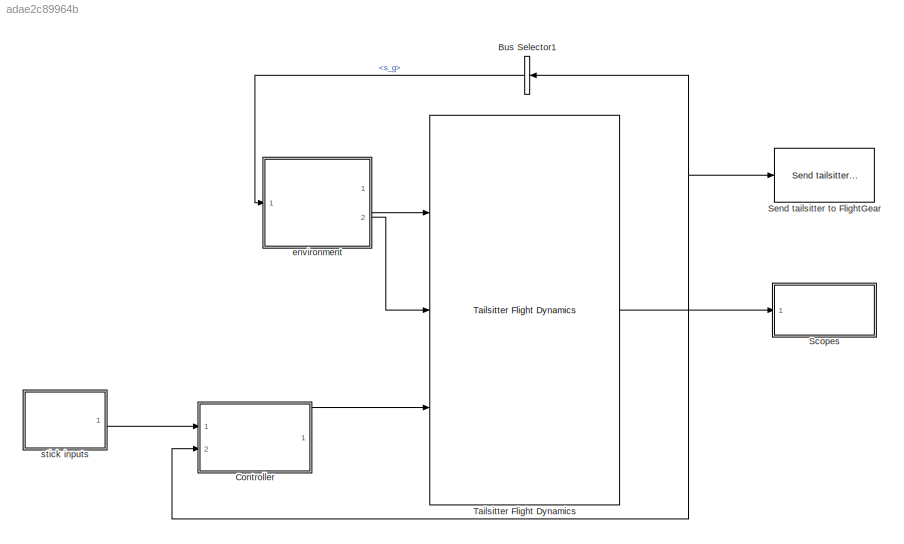
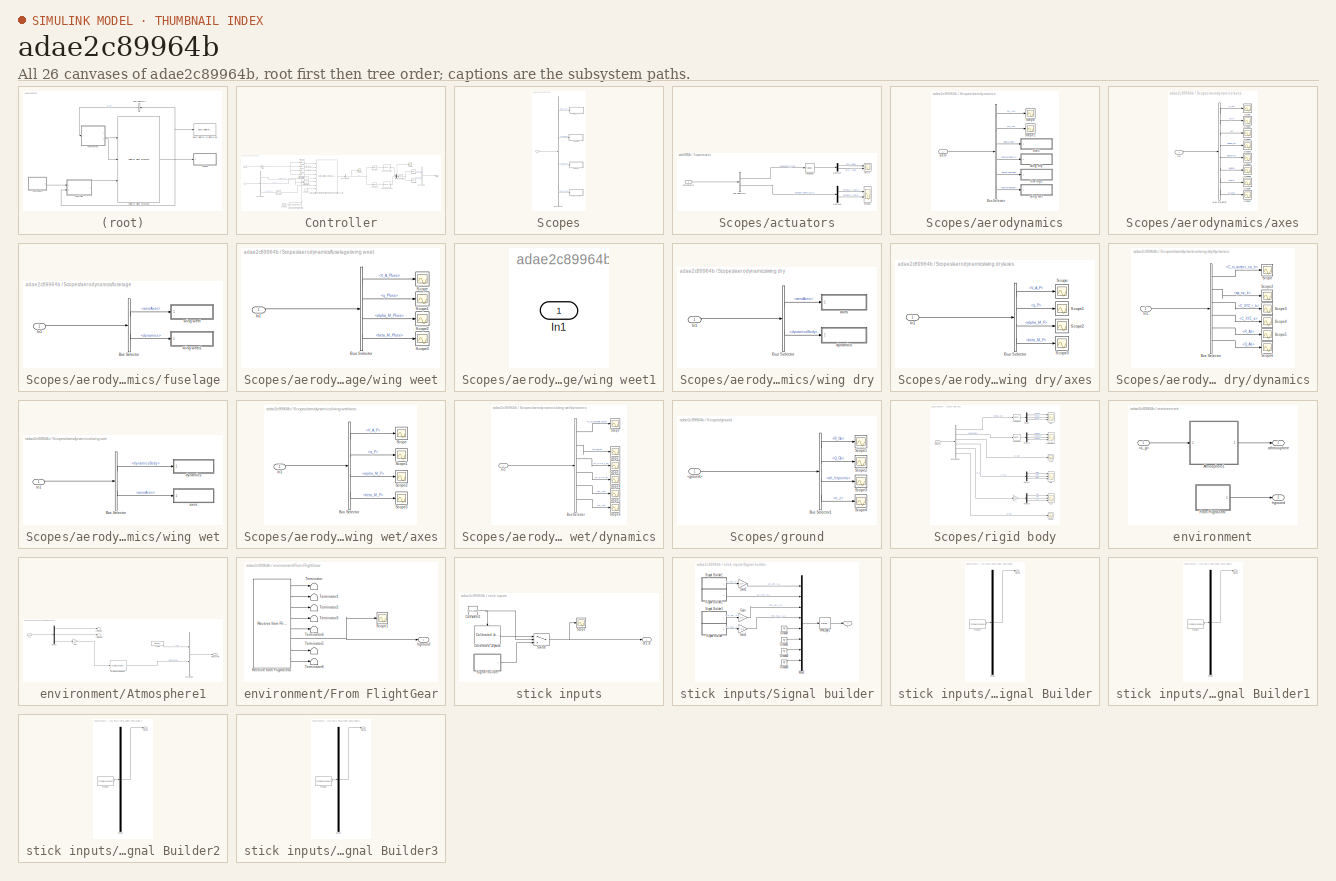
[diagram: thumbnail index - all 26 canvases of the model, root first then tree order]
MODEL slx_adae2c89964b
KIND model
CONFIG AbsTol = auto
CONFIG EnableMultiTasking = on
CONFIG FixedStep = 0.001
CONFIG MaxStep = auto
CONFIG MinStep = auto
CONFIG RelTol = 1e-4
CONFIG SampleTimeConstraint = Unconstrained
CONFIG Solver = ode45
CONFIG SolverName = ode45
CONFIG StartTime = 0
CONFIG StopTime = 1200
BLOCK [BusSelector] Bus Selector1
  OutputAsBus = off
  OutputSignals = rigid_body.s_g
  Ports = [1, 1]
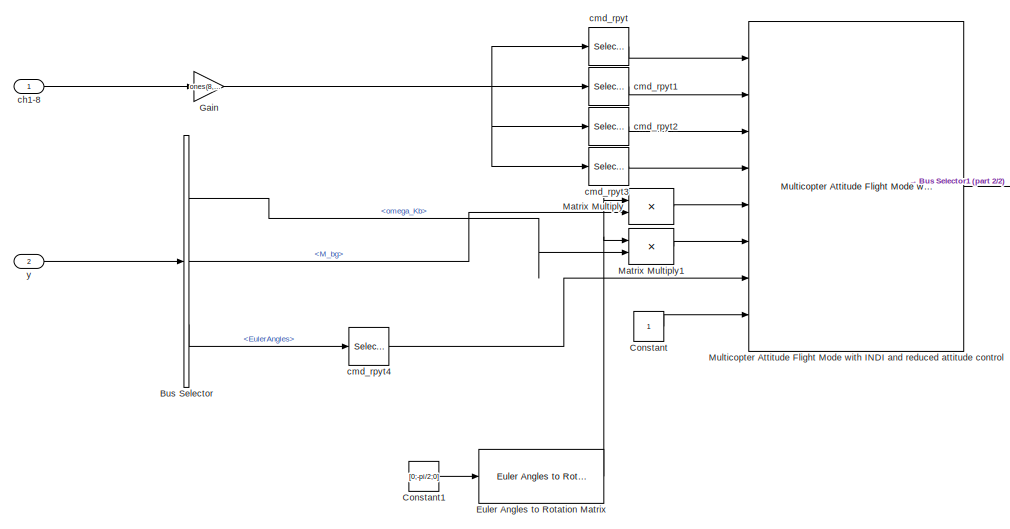
[diagram: Controller - part 1/2, left side, full height]
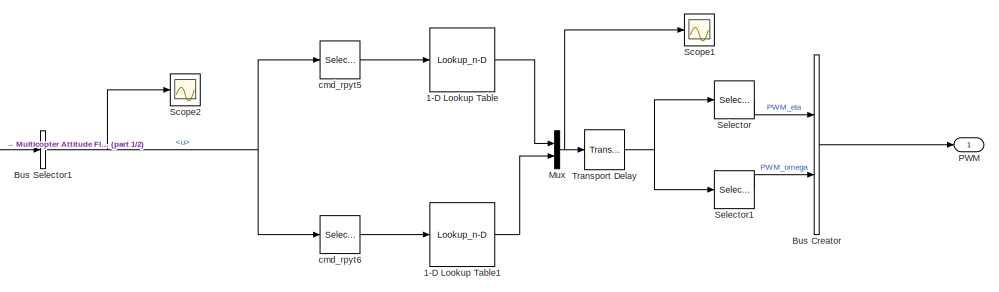
[diagram: Controller - part 2/2, middle right region]
BLOCK [SubSystem] Controller
  Ports = [2, 1]
  RequestExecContextInheritance = off
BLOCK [Lookup_n-D] Controller/1-D Lookup Table
  BreakpointsForDimension1 = [0,1]
  InternalRulePriority = Speed
  NumberOfTableDimensions = 1
  Ports = [1, 1]
  RndMeth = Simplest
  Table = [1100,1900]
BLOCK [Lookup_n-D] Controller/1-D Lookup Table1
  BreakpointsForDimension1 = [0,1]
  InternalRulePriority = Speed
  NumberOfTableDimensions = 1
  Ports = [1, 1]
  RndMeth = Simplest
  Table = [1000,2000]
BLOCK [BusCreator] Controller/Bus Creator
  DisplayOption = bar
  InheritFromInputs = on
  Inputs = 2
  Ports = [2, 1]
BLOCK [BusSelector] Controller/Bus Selector
  OutputAsBus = off
  OutputSignals = rigid_body.omega_Kb,rigid_body.M_bg,rigid_body.EulerAngles
  Ports = [1, 3]
BLOCK [BusSelector] Controller/Bus Selector1
  OutputAsBus = off
  OutputSignals = u
  Ports = [1, 1]
BLOCK [Constant] Controller/Constant
  OutDataTypeStr = Inherit: Inherit via back propagation
BLOCK [Constant] Controller/Constant1
  OutDataTypeStr = Inherit: Inherit via back propagation
  Value = [0;-pi/2;0]
BLOCK [Reference] Controller/Euler Angles to Rotation Matrix  REF=axes_transformation_lib/Euler Angles to Rotation Matrix  (lib defined in slx_69e2413c78c0)
  Ports = [1, 1]
  SourceBlock = axes_transformation_lib/Euler Angles to Rotation Matrix
  SourceProductName = LADAC
  SourceType = SubSystem
BLOCK [Gain] Controller/Gain
  Gain = ones(8,1)
  OutDataTypeStr = Inherit: Inherit via internal rule
  ParamDataTypeStr = Inherit: Inherit via internal rule
  SaturateOnIntegerOverflow = off
BLOCK [Product] Controller/Matrix Multiply
  InputSameDT = off
  Multiplication = Matrix(*)
  OutDataTypeStr = Inherit: Inherit via internal rule
  Ports = [2, 1]
  RndMeth = Floor
  SaturateOnIntegerOverflow = off
BLOCK [Product] Controller/Matrix Multiply1
  InputSameDT = off
  Multiplication = Matrix(*)
  OutDataTypeStr = Inherit: Inherit via internal rule
  Ports = [2, 1]
  RndMeth = Floor
  SaturateOnIntegerOverflow = off
BLOCK [Reference] Controller/Multicopter Attitude Flight Mode with INDI and reduced attitude control  REF=fmCopterAttiRedIndi_lib/Multicopter Attitude Flight Mode
with INDI and reduced attitude control
  Ports = [8, 1]
  SourceBlock = fmCopterAttiRedIndi_lib/Multicopter Attitude Flight Mode\nwith INDI and reduced attitude control
  SourceProductName = LADAC
BLOCK [Mux] Controller/Mux
  DisplayOption = bar
  Inputs = 2
  Ports = [2, 1]
BLOCK [Outport] Controller/PWM
  IconDisplay = Port number
BLOCK [Scope] Controller/Scope1
  Floating = off
  NumInputPorts = 1
  Ports = [1]
  ScopeSpecificationString = Simulink.scopes.TimeScopeBlockCfg('CurrentConfiguration', extmgr.ConfigurationSet(extmgr.Configuration('Core','General UI',true),extmgr.Configuration('Core','Source UI',true),extmgr.Configuration('Sources','WiredSimulink',true,'DataLoggingVariableName','ScopeData2'),extmgr.Configuration('Visuals','Time Domain',true,'SerializedDisplays',{struct('MinYLimReal','987.5','MaxYLimReal','2112.5','YLabelRe...<+1589ch>
BLOCK [Scope] Controller/Scope2
  Floating = off
  NumInputPorts = 1
  Ports = [1]
  ScopeSpecificationString = Simulink.scopes.TimeScopeBlockCfg('CurrentConfiguration', extmgr.ConfigurationSet(extmgr.Configuration('Core','General UI',true),extmgr.Configuration('Core','Source UI',true),extmgr.Configuration('Sources','WiredSimulink',true,'DataLoggingVariableName','ScopeData3'),extmgr.Configuration('Visuals','Time Domain',true,'SerializedDisplays',{struct('MinYLimReal','-0.125','MaxYLimReal','1.125','YLabelRe...<+1543ch>
BLOCK [Selector] Controller/Selector
  IndexOptions = Index vector (dialog)
  Indices = [1:2]
  InputPortWidth = 4
  OutputSizes = 1
  Ports = [1, 1]
BLOCK [Selector] Controller/Selector1
  IndexOptions = Index vector (dialog)
  Indices = [3:4]
  InputPortWidth = 4
  OutputSizes = 1
  Ports = [1, 1]
BLOCK [TransportDelay] Controller/Transport Delay
  DelayTime = 0.01*0
  Ports = [1, 1]
BLOCK [Inport] Controller/ch1-8
  IconDisplay = Port number
  OutDataTypeStr = double
  SamplingMode = Sample based
  SignalType = real
BLOCK [Selector] Controller/cmd_rpyt
  IndexOptions = Index vector (dialog)
  Indices = 1
  InputPortWidth = 8
  OutputSizes = 1
  Ports = [1, 1]
BLOCK [Selector] Controller/cmd_rpyt1
  IndexOptions = Index vector (dialog)
  Indices = 2
  InputPortWidth = 8
  OutputSizes = 1
  Ports = [1, 1]
BLOCK [Selector] Controller/cmd_rpyt2
  IndexOptions = Index vector (dialog)
  Indices = 3
  InputPortWidth = 8
  OutputSizes = 1
  Ports = [1, 1]
BLOCK [Selector] Controller/cmd_rpyt3
  IndexOptions = Index vector (dialog)
  Indices = 4
  InputPortWidth = 8
  OutputSizes = 1
  Ports = [1, 1]
BLOCK [Selector] Controller/cmd_rpyt4
  IndexOptions = Index vector (dialog)
  Indices = 3
  InputPortWidth = 3
  OutputSizes = 1
  Ports = [1, 1]
BLOCK [Selector] Controller/cmd_rpyt5
  IndexOptions = Index vector (dialog)
  Indices = [1,2]
  InputPortWidth = 4
  OutputSizes = 1
  Ports = [1, 1]
BLOCK [Selector] Controller/cmd_rpyt6
  IndexOptions = Index vector (dialog)
  Indices = [3,4]
  InputPortWidth = 4
  OutputSizes = 1
  Ports = [1, 1]
BLOCK [Inport] Controller/y
  IconDisplay = Port number
  Port = 2
BLOCK [SubSystem] Scopes
  Ports = [1]
  RequestExecContextInheritance = off
BLOCK [BusSelector] Scopes/Bus Selector
  OutputAsBus = off
  OutputSignals = rigid_body,actuators,ground,aerodynamics
  Ports = [1, 4]
BLOCK [SubSystem] Scopes/actuators
  Ports = [1]
  RequestExecContextInheritance = off
BLOCK [Inport] Scopes/actuators/<actuators>
  IconDisplay = Port number
BLOCK [BusSelector] Scopes/actuators/Bus Selector9
  OutputAsBus = off
  OutputSignals = eta_i.deflection_in_rad,angular_velocity_in_rad_per_s
  Ports = [1, 2]
BLOCK [Demux] Scopes/actuators/Demux4
  DisplayOption = bar
  Outputs = 2
  Ports = [1, 2]
BLOCK [Demux] Scopes/actuators/Demux6
  DisplayOption = bar
  Outputs = 2
  Ports = [1, 2]
BLOCK [Scope] Scopes/actuators/eta l,r
  Floating = off
  NumInputPorts = 2
  Ports = [2]
  ScopeSpecificationString = Simulink.scopes.TimeScopeBlockCfg('CurrentConfiguration', extmgr.ConfigurationSet(extmgr.Configuration('Core','General UI',true),extmgr.Configuration('Core','Source UI',true),extmgr.Configuration('Sources','WiredSimulink',true,'DataLoggingVariableName','ScopeEta','DataLogging',true,'DataLoggingSaveFormat','StructureWithTime'),extmgr.Configuration('Visuals','Time Domain',true,'SerializedDisplays',{...<+1529ch>
BLOCK [Scope] Scopes/actuators/omega
  Floating = off
  NumInputPorts = 2
  Ports = [2]
  ScopeSpecificationString = Simulink.scopes.TimeScopeBlockCfg('CurrentConfiguration', extmgr.ConfigurationSet(extmgr.Configuration('Core','General UI',true),extmgr.Configuration('Core','Source UI',true),extmgr.Configuration('Sources','WiredSimulink',true,'DataLoggingVariableName','ScopeOmega','DataLogging',true,'DataLoggingSaveFormat','StructureWithTime'),extmgr.Configuration('Visuals','Time Domain',true,'SerializedDisplays'...<+1614ch>
BLOCK [Reference] Scopes/actuators/rad2deg3  REF=unit_conversions_lib/rad2deg  (lib defined in slx_ae2855d4d91e)
  Ports = [1, 1]
  SourceBlock = unit_conversions_lib/rad2deg
  SourceProductName = LADAC
BLOCK [SubSystem] Scopes/aerodynamics
  Ports = [1]
  RequestExecContextInheritance = off
BLOCK [BusSelector] Scopes/aerodynamics/Bus Selector
  OutputAsBus = off
  OutputSignals = cg aerodynamics.R_Ab,cg aerodynamics.Q_Ab,cg aerodynamics.aeroAxes,local aerodynamic.aeroWingDry,local aerodynamic.aeroFuselage,local aerodynamic.aeroWingWet
  Ports = [1, 6]
BLOCK [Scope] Scopes/aerodynamics/Scope
  Floating = off
  NumInputPorts = 1
  Ports = [1]
  ScopeSpecificationString = Simulink.scopes.TimeScopeBlockCfg('CurrentConfiguration', extmgr.ConfigurationSet(extmgr.Configuration('Core','General UI',true),extmgr.Configuration('Core','Source UI',true),extmgr.Configuration('Sources','WiredSimulink',true,'DataLoggingVariableName','ScopeData1'),extmgr.Configuration('Visuals','Time Domain',true),extmgr.Configuration('Tools','Plot Navigation',true),extmgr.Configuration('Tools',...<+40ch>
BLOCK [Scope] Scopes/aerodynamics/Scope1
  Floating = off
  NumInputPorts = 1
  Ports = [1]
  ScopeSpecificationString = Simulink.scopes.TimeScopeBlockCfg('CurrentConfiguration', extmgr.ConfigurationSet(extmgr.Configuration('Core','General UI',true),extmgr.Configuration('Core','Source UI',true),extmgr.Configuration('Sources','WiredSimulink',true,'DataLoggingVariableName','ScopeData2'),extmgr.Configuration('Visuals','Time Domain',true,'SerializedDisplays',{struct('MinYLimReal','-0.02625','MaxYLimReal','0.05792','YLab...<+1469ch>
BLOCK [Inport] Scopes/aerodynamics/aero
  IconDisplay = Port number
BLOCK [SubSystem] Scopes/aerodynamics/axes
  Ports = [1]
  RequestExecContextInheritance = off
BLOCK [BusSelector] Scopes/aerodynamics/axes/Bus Selector
  OutputAsBus = off
  OutputSignals = V_Ab,V_A,q,alpha_M,beta_M,alpha,beta,V_Wb
  Ports = [1, 8]
BLOCK [Inport] Scopes/aerodynamics/axes/In1
  IconDisplay = Port number
BLOCK [Scope] Scopes/aerodynamics/axes/Scope
  Floating = off
  NumInputPorts = 1
  Ports = [1]
  ScopeSpecificationString = Simulink.scopes.TimeScopeBlockCfg('CurrentConfiguration', extmgr.ConfigurationSet(extmgr.Configuration('Core','General UI',true),extmgr.Configuration('Core','Source UI',true),extmgr.Configuration('Sources','WiredSimulink',true,'DataLoggingVariableName','ScopeData3'),extmgr.Configuration('Visuals','Time Domain',true),extmgr.Configuration('Tools','Plot Navigation',true),extmgr.Configuration('Tools',...<+40ch>
BLOCK [Scope] Scopes/aerodynamics/axes/Scope1
  Floating = off
  NumInputPorts = 1
  Ports = [1]
  ScopeSpecificationString = Simulink.scopes.TimeScopeBlockCfg('CurrentConfiguration', extmgr.ConfigurationSet(extmgr.Configuration('Core','General UI',true),extmgr.Configuration('Core','Source UI',true),extmgr.Configuration('Sources','WiredSimulink',true,'DataLoggingVariableName','ScopeData4'),extmgr.Configuration('Visuals','Time Domain',true,'SerializedDisplays',{struct('MinYLimReal','-2.33732','MaxYLimReal','21.13584','YLa...<+1448ch>
BLOCK [Scope] Scopes/aerodynamics/axes/Scope2
  Floating = off
  NumInputPorts = 1
  Ports = [1]
  ScopeSpecificationString = Simulink.scopes.TimeScopeBlockCfg('CurrentConfiguration', extmgr.ConfigurationSet(extmgr.Configuration('Core','General UI',true),extmgr.Configuration('Core','Source UI',true),extmgr.Configuration('Sources','WiredSimulink',true,'DataLoggingVariableName','ScopeData5'),extmgr.Configuration('Visuals','Time Domain',true),extmgr.Configuration('Tools','Plot Navigation',true),extmgr.Configuration('Tools',...<+40ch>
BLOCK [Scope] Scopes/aerodynamics/axes/Scope3
  Floating = off
  NumInputPorts = 1
  Ports = [1]
  ScopeSpecificationString = Simulink.scopes.TimeScopeBlockCfg('CurrentConfiguration', extmgr.ConfigurationSet(extmgr.Configuration('Core','General UI',true),extmgr.Configuration('Core','Source UI',true),extmgr.Configuration('Sources','WiredSimulink',true,'DataLoggingVariableName','ScopeData6'),extmgr.Configuration('Visuals','Time Domain',true,'SerializedDisplays',{struct('MinYLimReal','-1.49161','MaxYLimReal','0.267','YLabel...<+1444ch>
BLOCK [Scope] Scopes/aerodynamics/axes/Scope4
  Floating = off
  NumInputPorts = 1
  Ports = [1]
  ScopeSpecificationString = Simulink.scopes.TimeScopeBlockCfg('CurrentConfiguration', extmgr.ConfigurationSet(extmgr.Configuration('Core','General UI',true),extmgr.Configuration('Core','Source UI',true),extmgr.Configuration('Sources','WiredSimulink',true,'DataLoggingVariableName','ScopeData7'),extmgr.Configuration('Visuals','Time Domain',true,'SerializedDisplays',{struct('MinYLimReal','-3.64496','MaxYLimReal','1.4306','YLabe...<+1445ch>
BLOCK [Scope] Scopes/aerodynamics/axes/Scope5
  Floating = off
  NumInputPorts = 1
  Ports = [1]
  ScopeSpecificationString = Simulink.scopes.TimeScopeBlockCfg('CurrentConfiguration', extmgr.ConfigurationSet(extmgr.Configuration('Core','General UI',true),extmgr.Configuration('Core','Source UI',true),extmgr.Configuration('Sources','WiredSimulink',true,'DataLoggingVariableName','ScopeData8'),extmgr.Configuration('Visuals','Time Domain',true),extmgr.Configuration('Tools','Plot Navigation',true),extmgr.Configuration('Tools',...<+40ch>
BLOCK [Scope] Scopes/aerodynamics/axes/Scope6
  Floating = off
  NumInputPorts = 1
  Ports = [1]
  ScopeSpecificationString = Simulink.scopes.TimeScopeBlockCfg('CurrentConfiguration', extmgr.ConfigurationSet(extmgr.Configuration('Core','General UI',true),extmgr.Configuration('Core','Source UI',true),extmgr.Configuration('Sources','WiredSimulink',true,'DataLoggingVariableName','ScopeData9'),extmgr.Configuration('Visuals','Time Domain',true),extmgr.Configuration('Tools','Plot Navigation',true),extmgr.Configuration('Tools',...<+40ch>
BLOCK [Scope] Scopes/aerodynamics/axes/Scope7
  Floating = off
  NumInputPorts = 1
  Ports = [1]
  ScopeSpecificationString = Simulink.scopes.TimeScopeBlockCfg('CurrentConfiguration', extmgr.ConfigurationSet(extmgr.Configuration('Core','General UI',true),extmgr.Configuration('Core','Source UI',true),extmgr.Configuration('Sources','WiredSimulink',true,'DataLoggingVariableName','ScopeData10'),extmgr.Configuration('Visuals','Time Domain',true),extmgr.Configuration('Tools','Plot Navigation',true),extmgr.Configuration('Tools'...<+41ch>
BLOCK [SubSystem] Scopes/aerodynamics/fuselage
  Ports = [1]
  RequestExecContextInheritance = off
BLOCK [BusSelector] Scopes/aerodynamics/fuselage/Bus Selector
  OutputAsBus = off
  OutputSignals = aeroAxes,dynamics
  Ports = [1, 2]
BLOCK [Inport] Scopes/aerodynamics/fuselage/In1
  IconDisplay = Port number
BLOCK [SubSystem] Scopes/aerodynamics/fuselage/wing weet
  Ports = [1]
  RequestExecContextInheritance = off
BLOCK [BusSelector] Scopes/aerodynamics/fuselage/wing weet/Bus Selector
  OutputAsBus = off
  OutputSignals = V_A_Pfuse,q_Pfuse,alpha_M_Pfuse,beta_M_Pfuse
  Ports = [1, 4]
BLOCK [Inport] Scopes/aerodynamics/fuselage/wing weet/In1
  IconDisplay = Port number
BLOCK [Scope] Scopes/aerodynamics/fuselage/wing weet/Scope
  Floating = off
  NumInputPorts = 1
  Ports = [1]
  ScopeSpecificationString = Simulink.scopes.TimeScopeBlockCfg('CurrentConfiguration', extmgr.ConfigurationSet(extmgr.Configuration('Core','General UI',true),extmgr.Configuration('Core','Source UI',true),extmgr.Configuration('Sources','WiredSimulink',true,'DataLoggingVariableName','ScopeData33'),extmgr.Configuration('Visuals','Time Domain',true),extmgr.Configuration('Tools','Plot Navigation',true),extmgr.Configuration('Tools'...<+41ch>
BLOCK [Scope] Scopes/aerodynamics/fuselage/wing weet/Scope1
  Floating = off
  NumInputPorts = 1
  Ports = [1]
  ScopeSpecificationString = Simulink.scopes.TimeScopeBlockCfg('CurrentConfiguration', extmgr.ConfigurationSet(extmgr.Configuration('Core','General UI',true),extmgr.Configuration('Core','Source UI',true),extmgr.Configuration('Sources','WiredSimulink',true,'DataLoggingVariableName','ScopeData34'),extmgr.Configuration('Visuals','Time Domain',true),extmgr.Configuration('Tools','Plot Navigation',true),extmgr.Configuration('Tools'...<+41ch>
BLOCK [Scope] Scopes/aerodynamics/fuselage/wing weet/Scope2
  Floating = off
  NumInputPorts = 1
  Ports = [1]
  ScopeSpecificationString = Simulink.scopes.TimeScopeBlockCfg('CurrentConfiguration', extmgr.ConfigurationSet(extmgr.Configuration('Core','General UI',true),extmgr.Configuration('Core','Source UI',true),extmgr.Configuration('Sources','WiredSimulink',true,'DataLoggingVariableName','ScopeData35'),extmgr.Configuration('Visuals','Time Domain',true),extmgr.Configuration('Tools','Plot Navigation',true),extmgr.Configuration('Tools'...<+41ch>
BLOCK [Scope] Scopes/aerodynamics/fuselage/wing weet/Scope3
  Floating = off
  NumInputPorts = 1
  Ports = [1]
  ScopeSpecificationString = Simulink.scopes.TimeScopeBlockCfg('CurrentConfiguration', extmgr.ConfigurationSet(extmgr.Configuration('Core','General UI',true),extmgr.Configuration('Core','Source UI',true),extmgr.Configuration('Sources','WiredSimulink',true,'DataLoggingVariableName','ScopeData36'),extmgr.Configuration('Visuals','Time Domain',true),extmgr.Configuration('Tools','Plot Navigation',true),extmgr.Configuration('Tools'...<+41ch>
BLOCK [SubSystem] Scopes/aerodynamics/fuselage/wing weet1
  Ports = [1]
  RequestExecContextInheritance = off
BLOCK [Inport] Scopes/aerodynamics/fuselage/wing weet1/In1
  IconDisplay = Port number
BLOCK [SubSystem] Scopes/aerodynamics/wing dry
  Ports = [1]
  RequestExecContextInheritance = off
BLOCK [BusSelector] Scopes/aerodynamics/wing dry/Bus Selector
  OutputAsBus = off
  OutputSignals = aeroAxes,dynamicsBody
  Ports = [1, 2]
BLOCK [Inport] Scopes/aerodynamics/wing dry/In1
  IconDisplay = Port number
BLOCK [SubSystem] Scopes/aerodynamics/wing dry/axes
  Ports = [1]
  RequestExecContextInheritance = off
BLOCK [BusSelector] Scopes/aerodynamics/wing dry/axes/Bus Selector
  OutputAsBus = off
  OutputSignals = V_A_P,q_P,alpha_M_P,beta_M_P
  Ports = [1, 4]
BLOCK [Inport] Scopes/aerodynamics/wing dry/axes/In1
  IconDisplay = Port number
BLOCK [Scope] Scopes/aerodynamics/wing dry/axes/Scope
  Floating = off
  NumInputPorts = 1
  Ports = [1]
  ScopeSpecificationString = Simulink.scopes.TimeScopeBlockCfg('CurrentConfiguration', extmgr.ConfigurationSet(extmgr.Configuration('Core','General UI',true),extmgr.Configuration('Core','Source UI',true),extmgr.Configuration('Sources','WiredSimulink',true,'DataLoggingVariableName','ScopeData11'),extmgr.Configuration('Visuals','Time Domain',true),extmgr.Configuration('Tools','Plot Navigation',true),extmgr.Configuration('Tools'...<+41ch>
BLOCK [Scope] Scopes/aerodynamics/wing dry/axes/Scope1
  Floating = off
  NumInputPorts = 1
  Ports = [1]
  ScopeSpecificationString = Simulink.scopes.TimeScopeBlockCfg('CurrentConfiguration', extmgr.ConfigurationSet(extmgr.Configuration('Core','General UI',true),extmgr.Configuration('Core','Source UI',true),extmgr.Configuration('Sources','WiredSimulink',true,'DataLoggingVariableName','ScopeData12'),extmgr.Configuration('Visuals','Time Domain',true,'SerializedDisplays',{struct('MinYLimReal','-27.23614','MaxYLimReal','245.12584','...<+1473ch>
BLOCK [Scope] Scopes/aerodynamics/wing dry/axes/Scope2
  Floating = off
  NumInputPorts = 1
  Ports = [1]
  ScopeSpecificationString = Simulink.scopes.TimeScopeBlockCfg('CurrentConfiguration', extmgr.ConfigurationSet(extmgr.Configuration('Core','General UI',true),extmgr.Configuration('Core','Source UI',true),extmgr.Configuration('Sources','WiredSimulink',true,'DataLoggingVariableName','ScopeData13'),extmgr.Configuration('Visuals','Time Domain',true,'SerializedDisplays',{struct('MinYLimReal','-1.24162','MaxYLimReal','0.8507','YLab...<+1479ch>
BLOCK [Scope] Scopes/aerodynamics/wing dry/axes/Scope3
  Floating = off
  NumInputPorts = 1
  Ports = [1]
  ScopeSpecificationString = Simulink.scopes.TimeScopeBlockCfg('CurrentConfiguration', extmgr.ConfigurationSet(extmgr.Configuration('Core','General UI',true),extmgr.Configuration('Core','Source UI',true),extmgr.Configuration('Sources','WiredSimulink',true,'DataLoggingVariableName','ScopeData14'),extmgr.Configuration('Visuals','Time Domain',true,'SerializedDisplays',{struct('MinYLimReal','-3.71659','MaxYLimReal','2.07513','YLa...<+1503ch>
BLOCK [SubSystem] Scopes/aerodynamics/wing dry/dynamics
  Ports = [1]
  RequestExecContextInheritance = off
BLOCK [BusSelector] Scopes/aerodynamics/wing dry/dynamics/Bus Selector
  OutputAsBus = off
  OutputSignals = C_m_camber_np_b,xyz_np_b,C_XYZ_i_b,C_XYZ_a,R_Ab,Q_Ab
  Ports = [1, 6]
BLOCK [Inport] Scopes/aerodynamics/wing dry/dynamics/In1
  IconDisplay = Port number
BLOCK [Scope] Scopes/aerodynamics/wing dry/dynamics/Scope
  Floating = off
  NumInputPorts = 1
  Ports = [1]
  ScopeSpecificationString = Simulink.scopes.TimeScopeBlockCfg('CurrentConfiguration', extmgr.ConfigurationSet(extmgr.Configuration('Core','General UI',true),extmgr.Configuration('Core','Source UI',true),extmgr.Configuration('Sources','WiredSimulink',true,'DataLoggingVariableName','ScopeData15'),extmgr.Configuration('Visuals','Time Domain',true,'SerializedDisplays',{struct('MinYLimReal','-0.0756','MaxYLimReal','0.07628','YLab...<+1472ch>
BLOCK [Scope] Scopes/aerodynamics/wing dry/dynamics/Scope2
  Floating = off
  NumInputPorts = 1
  Ports = [1]
  ScopeSpecificationString = Simulink.scopes.TimeScopeBlockCfg('CurrentConfiguration', extmgr.ConfigurationSet(extmgr.Configuration('Core','General UI',true),extmgr.Configuration('Core','Source UI',true),extmgr.Configuration('Sources','WiredSimulink',true,'DataLoggingVariableName','ScopeData17'),extmgr.Configuration('Visuals','Time Domain',true,'SerializedDisplays',{struct('MinYLimReal','-0.25','MaxYLimReal','0.25','YLabelRea...<+1539ch>
BLOCK [Scope] Scopes/aerodynamics/wing dry/dynamics/Scope3
  Floating = off
  NumInputPorts = 1
  Ports = [1]
  ScopeSpecificationString = Simulink.scopes.TimeScopeBlockCfg('CurrentConfiguration', extmgr.ConfigurationSet(extmgr.Configuration('Core','General UI',true),extmgr.Configuration('Core','Source UI',true),extmgr.Configuration('Sources','WiredSimulink',true,'DataLoggingVariableName','ScopeData18'),extmgr.Configuration('Visuals','Time Domain',true,'SerializedDisplays',{struct('MinYLimReal','-1.90209','MaxYLimReal','1.86409','YLa...<+1687ch>
BLOCK [Scope] Scopes/aerodynamics/wing dry/dynamics/Scope4
  Floating = off
  NumInputPorts = 1
  Ports = [1]
  ScopeSpecificationString = Simulink.scopes.TimeScopeBlockCfg('CurrentConfiguration', extmgr.ConfigurationSet(extmgr.Configuration('Core','General UI',true),extmgr.Configuration('Core','Source UI',true),extmgr.Configuration('Sources','WiredSimulink',true,'DataLoggingVariableName','ScopeData19'),extmgr.Configuration('Visuals','Time Domain',true,'SerializedDisplays',{struct('MinYLimReal','-1.41165','MaxYLimReal','1.20297','YLa...<+1521ch>
BLOCK [Scope] Scopes/aerodynamics/wing dry/dynamics/Scope5
  Floating = off
  NumInputPorts = 1
  Ports = [1]
  ScopeSpecificationString = Simulink.scopes.TimeScopeBlockCfg('CurrentConfiguration', extmgr.ConfigurationSet(extmgr.Configuration('Core','General UI',true),extmgr.Configuration('Core','Source UI',true),extmgr.Configuration('Sources','WiredSimulink',true,'DataLoggingVariableName','ScopeData20'),extmgr.Configuration('Visuals','Time Domain',true,'SerializedDisplays',{struct('MinYLimReal','-26.52583','MaxYLimReal','26.49284','Y...<+1495ch>
BLOCK [Scope] Scopes/aerodynamics/wing dry/dynamics/Scope6
  Floating = off
  NumInputPorts = 1
  Ports = [1]
  ScopeSpecificationString = Simulink.scopes.TimeScopeBlockCfg('CurrentConfiguration', extmgr.ConfigurationSet(extmgr.Configuration('Core','General UI',true),extmgr.Configuration('Core','Source UI',true),extmgr.Configuration('Sources','WiredSimulink',true,'DataLoggingVariableName','ScopeData21'),extmgr.Configuration('Visuals','Time Domain',true,'SerializedDisplays',{struct('MinYLimReal','-0.01526','MaxYLimReal','0.02139','YLa...<+1516ch>
BLOCK [SubSystem] Scopes/aerodynamics/wing wet
  Ports = [1]
  RequestExecContextInheritance = off
BLOCK [BusSelector] Scopes/aerodynamics/wing wet/Bus Selector
  OutputAsBus = off
  OutputSignals = dynamicsBody,aeroAxes
  Ports = [1, 2]
BLOCK [Inport] Scopes/aerodynamics/wing wet/In1
  IconDisplay = Port number
BLOCK [SubSystem] Scopes/aerodynamics/wing wet/axes
  Ports = [1]
  RequestExecContextInheritance = off
BLOCK [BusSelector] Scopes/aerodynamics/wing wet/axes/Bus Selector
  OutputAsBus = off
  OutputSignals = V_A_P,q_P,alpha_M_P,beta_M_P
  Ports = [1, 4]
BLOCK [Inport] Scopes/aerodynamics/wing wet/axes/In1
  IconDisplay = Port number
BLOCK [Scope] Scopes/aerodynamics/wing wet/axes/Scope
  Floating = off
  NumInputPorts = 1
  Ports = [1]
  ScopeSpecificationString = Simulink.scopes.TimeScopeBlockCfg('CurrentConfiguration', extmgr.ConfigurationSet(extmgr.Configuration('Core','General UI',true),extmgr.Configuration('Core','Source UI',true),extmgr.Configuration('Sources','WiredSimulink',true,'DataLoggingVariableName','ScopeData22'),extmgr.Configuration('Visuals','Time Domain',true,'SerializedDisplays',{struct('MinYLimReal','-4.99035','MaxYLimReal','45.01311','YL...<+1490ch>
BLOCK [Scope] Scopes/aerodynamics/wing wet/axes/Scope1
  Floating = off
  NumInputPorts = 1
  Ports = [1]
  ScopeSpecificationString = Simulink.scopes.TimeScopeBlockCfg('CurrentConfiguration', extmgr.ConfigurationSet(extmgr.Configuration('Core','General UI',true),extmgr.Configuration('Core','Source UI',true),extmgr.Configuration('Sources','WiredSimulink',true,'DataLoggingVariableName','ScopeData23'),extmgr.Configuration('Visuals','Time Domain',true,'SerializedDisplays',{struct('MinYLimReal','-205.62769','MaxYLimReal','1850.64984'...<+1481ch>
BLOCK [Scope] Scopes/aerodynamics/wing wet/axes/Scope2
  Floating = off
  NumInputPorts = 1
  Ports = [1]
  ScopeSpecificationString = Simulink.scopes.TimeScopeBlockCfg('CurrentConfiguration', extmgr.ConfigurationSet(extmgr.Configuration('Core','General UI',true),extmgr.Configuration('Core','Source UI',true),extmgr.Configuration('Sources','WiredSimulink',true,'DataLoggingVariableName','ScopeData24'),extmgr.Configuration('Visuals','Time Domain',true,'SerializedDisplays',{struct('MinYLimReal','-0.1538','MaxYLimReal','0.21391','YLab...<+1503ch>
BLOCK [Scope] Scopes/aerodynamics/wing wet/axes/Scope3
  Floating = off
  NumInputPorts = 1
  Ports = [1]
  ScopeSpecificationString = Simulink.scopes.TimeScopeBlockCfg('CurrentConfiguration', extmgr.ConfigurationSet(extmgr.Configuration('Core','General UI',true),extmgr.Configuration('Core','Source UI',true),extmgr.Configuration('Sources','WiredSimulink',true,'DataLoggingVariableName','ScopeData25'),extmgr.Configuration('Visuals','Time Domain',true,'SerializedDisplays',{struct('MinYLimReal','-3.61249','MaxYLimReal','1.11592','YLa...<+1484ch>
BLOCK [SubSystem] Scopes/aerodynamics/wing wet/dynamics
  Ports = [1]
  RequestExecContextInheritance = off
BLOCK [BusSelector] Scopes/aerodynamics/wing wet/dynamics/Bus Selector
  OutputAsBus = off
  OutputSignals = C_m_camber_np_b,xyz_np_b,C_XYZ_i_b,C_XYZ_a,R_Ab,Q_Ab
  Ports = [1, 6]
BLOCK [Inport] Scopes/aerodynamics/wing wet/dynamics/In1
  IconDisplay = Port number
BLOCK [Scope] Scopes/aerodynamics/wing wet/dynamics/Scope
  Floating = off
  NumInputPorts = 1
  Ports = [1]
  ScopeSpecificationString = Simulink.scopes.TimeScopeBlockCfg('CurrentConfiguration', extmgr.ConfigurationSet(extmgr.Configuration('Core','General UI',true),extmgr.Configuration('Core','Source UI',true),extmgr.Configuration('Sources','WiredSimulink',true,'DataLoggingVariableName','ScopeData26'),extmgr.Configuration('Visuals','Time Domain',true,'SerializedDisplays',{struct('MinYLimReal','-0.07689','MaxYLimReal','0.07665','YLa...<+1474ch>
BLOCK [Scope] Scopes/aerodynamics/wing wet/dynamics/Scope2
  Floating = off
  NumInputPorts = 1
  Ports = [1]
  ScopeSpecificationString = Simulink.scopes.TimeScopeBlockCfg('CurrentConfiguration', extmgr.ConfigurationSet(extmgr.Configuration('Core','General UI',true),extmgr.Configuration('Core','Source UI',true),extmgr.Configuration('Sources','WiredSimulink',true,'DataLoggingVariableName','ScopeData28'),extmgr.Configuration('Visuals','Time Domain',true,'SerializedDisplays',{struct('MinYLimReal','-0.25','MaxYLimReal','0.25','YLabelRea...<+1528ch>
BLOCK [Scope] Scopes/aerodynamics/wing wet/dynamics/Scope3
  Floating = off
  NumInputPorts = 1
  Ports = [1]
  ScopeSpecificationString = Simulink.scopes.TimeScopeBlockCfg('CurrentConfiguration', extmgr.ConfigurationSet(extmgr.Configuration('Core','General UI',true),extmgr.Configuration('Core','Source UI',true),extmgr.Configuration('Sources','WiredSimulink',true,'DataLoggingVariableName','ScopeData29'),extmgr.Configuration('Visuals','Time Domain',true,'SerializedDisplays',{struct('MinYLimReal','-0.99924','MaxYLimReal','0.73023','YLa...<+1563ch>
BLOCK [Scope] Scopes/aerodynamics/wing wet/dynamics/Scope4
  Floating = off
  NumInputPorts = 1
  Ports = [1]
  ScopeSpecificationString = Simulink.scopes.TimeScopeBlockCfg('CurrentConfiguration', extmgr.ConfigurationSet(extmgr.Configuration('Core','General UI',true),extmgr.Configuration('Core','Source UI',true),extmgr.Configuration('Sources','WiredSimulink',true,'DataLoggingVariableName','ScopeData30'),extmgr.Configuration('Visuals','Time Domain',true),extmgr.Configuration('Tools','Plot Navigation',true),extmgr.Configuration('Tools'...<+41ch>
BLOCK [Scope] Scopes/aerodynamics/wing wet/dynamics/Scope5
  Floating = off
  NumInputPorts = 1
  Ports = [1]
  ScopeSpecificationString = Simulink.scopes.TimeScopeBlockCfg('CurrentConfiguration', extmgr.ConfigurationSet(extmgr.Configuration('Core','General UI',true),extmgr.Configuration('Core','Source UI',true),extmgr.Configuration('Sources','WiredSimulink',true,'DataLoggingVariableName','ScopeData31'),extmgr.Configuration('Visuals','Time Domain',true,'SerializedDisplays',{struct('MinYLimReal','-0.28527','MaxYLimReal','0.1656','YLab...<+1468ch>
BLOCK [Scope] Scopes/aerodynamics/wing wet/dynamics/Scope6
  Floating = off
  NumInputPorts = 1
  Ports = [1]
  ScopeSpecificationString = Simulink.scopes.TimeScopeBlockCfg('CurrentConfiguration', extmgr.ConfigurationSet(extmgr.Configuration('Core','General UI',true),extmgr.Configuration('Core','Source UI',true),extmgr.Configuration('Sources','WiredSimulink',true,'DataLoggingVariableName','ScopeData32'),extmgr.Configuration('Visuals','Time Domain',true,'SerializedDisplays',{struct('MinYLimReal','-0.00864','MaxYLimReal','0.0145','YLab...<+1497ch>
BLOCK [SubSystem] Scopes/ground
  Ports = [1]
  RequestExecContextInheritance = off
BLOCK [Inport] Scopes/ground/<ground>
  IconDisplay = Port number
BLOCK [BusSelector] Scopes/ground/Bus Selector1
  Commented = on
  OutputAsBus = off
  OutputSignals = R_Gb,Q_Gb,alt_hitpoints,e_z
  Ports = [1, 4]
BLOCK [Scope] Scopes/ground/Scope1
  Commented = on
  Floating = off
  NumInputPorts = 1
  Ports = [1]
  ScopeSpecificationString = Simulink.scopes.TimeScopeBlockCfg('CurrentConfiguration', extmgr.ConfigurationSet(extmgr.Configuration('Core','General UI',true),extmgr.Configuration('Core','Source UI',true),extmgr.Configuration('Sources','WiredSimulink',true,'DataLoggingVariableName','ScopeData6'),extmgr.Configuration('Visuals','Time Domain',true),extmgr.Configuration('Tools','Plot Navigation',true),extmgr.Configuration('Tools',...<+40ch>
BLOCK [Scope] Scopes/ground/Scope2
  Commented = on
  Floating = off
  NumInputPorts = 1
  Ports = [1]
  ScopeSpecificationString = Simulink.scopes.TimeScopeBlockCfg('CurrentConfiguration', extmgr.ConfigurationSet(extmgr.Configuration('Core','General UI',true),extmgr.Configuration('Core','Source UI',true),extmgr.Configuration('Sources','WiredSimulink',true,'DataLoggingVariableName','ScopeData7'),extmgr.Configuration('Visuals','Time Domain',true),extmgr.Configuration('Tools','Plot Navigation',true),extmgr.Configuration('Tools',...<+40ch>
BLOCK [Scope] Scopes/ground/Scope3
  Commented = on
  Floating = off
  NumInputPorts = 1
  Ports = [1]
  ScopeSpecificationString = Simulink.scopes.TimeScopeBlockCfg('CurrentConfiguration', extmgr.ConfigurationSet(extmgr.Configuration('Core','General UI',true),extmgr.Configuration('Core','Source UI',true),extmgr.Configuration('Sources','WiredSimulink',true,'DataLoggingVariableName','ScopeData8'),extmgr.Configuration('Visuals','Time Domain',true,'SerializedDisplays',{struct('MinYLimReal','-0.11268','MaxYLimReal','0.57088','YLab...<+1616ch>
BLOCK [Scope] Scopes/ground/Scope4
  Commented = on
  Floating = off
  NumInputPorts = 1
  Ports = [1]
  ScopeSpecificationString = Simulink.scopes.TimeScopeBlockCfg('CurrentConfiguration', extmgr.ConfigurationSet(extmgr.Configuration('Core','General UI',true),extmgr.Configuration('Core','Source UI',true),extmgr.Configuration('Sources','WiredSimulink',true,'DataLoggingVariableName','ScopeData9'),extmgr.Configuration('Visuals','Time Domain',true,'SerializedDisplays',{struct('MinYLimReal','-0.00094','MaxYLimReal','0.0085','YLabe...<+1552ch>
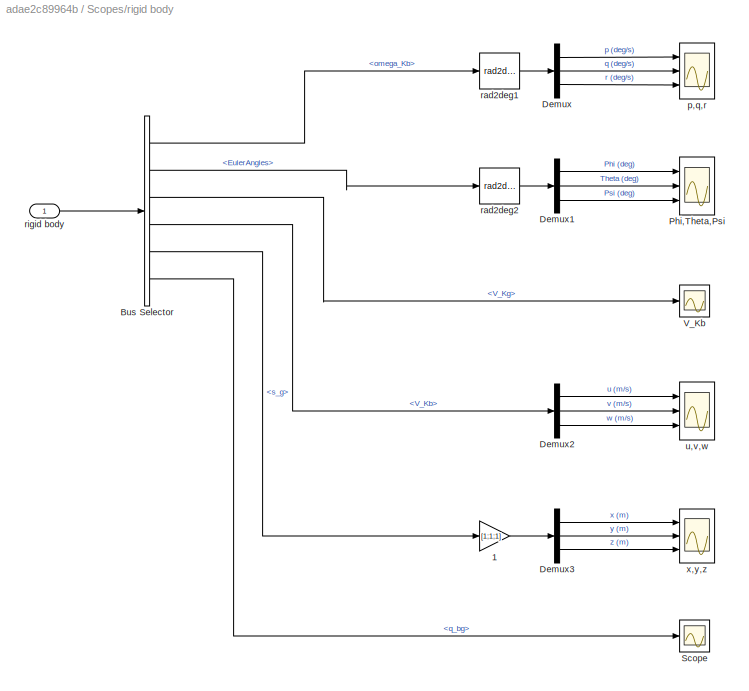
BLOCK [SubSystem] Scopes/rigid body
  Ports = [1]
  RequestExecContextInheritance = off
BLOCK [Gain] Scopes/rigid body/1
  Gain = [1;1;1]
  OutDataTypeStr = Inherit: Inherit via internal rule
  ParamDataTypeStr = Inherit: Inherit via internal rule
  SaturateOnIntegerOverflow = off
BLOCK [BusSelector] Scopes/rigid body/Bus Selector
  OutputAsBus = off
  OutputSignals = omega_Kb,EulerAngles,V_Kg,V_Kb,s_g,q_bg
  Ports = [1, 6]
BLOCK [Demux] Scopes/rigid body/Demux
  DisplayOption = bar
  Outputs = 3
  Ports = [1, 3]
BLOCK [Demux] Scopes/rigid body/Demux1
  DisplayOption = bar
  Outputs = 3
  Ports = [1, 3]
BLOCK [Demux] Scopes/rigid body/Demux2
  DisplayOption = bar
  Outputs = 3
  Ports = [1, 3]
BLOCK [Demux] Scopes/rigid body/Demux3
  DisplayOption = bar
  Outputs = 3
  Ports = [1, 3]
BLOCK [Scope] Scopes/rigid body/Phi,Theta,Psi
  Floating = off
  NumInputPorts = 3
  Ports = [3]
  ScopeSpecificationString = Simulink.scopes.TimeScopeBlockCfg('CurrentConfiguration', extmgr.ConfigurationSet(extmgr.Configuration('Core','General UI',true),extmgr.Configuration('Core','Source UI',true),extmgr.Configuration('Sources','WiredSimulink',true,'DataLoggingVariableName','ScopeAngles','DataLogging',true,'DataLoggingSaveFormat','StructureWithTime'),extmgr.Configuration('Visuals','Time Domain',true,'SerializedDisplays...<+1932ch>
BLOCK [Scope] Scopes/rigid body/Scope
  Floating = off
  NumInputPorts = 1
  Ports = [1]
  ScopeSpecificationString = Simulink.scopes.TimeScopeBlockCfg('CurrentConfiguration', extmgr.ConfigurationSet(extmgr.Configuration('Core','General UI',true),extmgr.Configuration('Core','Source UI',true),extmgr.Configuration('Sources','WiredSimulink',true,'DataLoggingVariableName','ScopeData1'),extmgr.Configuration('Visuals','Time Domain',true,'SerializedDisplays',{struct('MinYLimReal','-1.19411','MaxYLimReal','1.24363','YLab...<+1445ch>
BLOCK [Scope] Scopes/rigid body/V_Kb
  Floating = off
  NumInputPorts = 1
  Ports = [1]
  ScopeSpecificationString = Simulink.scopes.TimeScopeBlockCfg('CurrentConfiguration', extmgr.ConfigurationSet(extmgr.Configuration('Core','General UI',true),extmgr.Configuration('Core','Source UI',true),extmgr.Configuration('Sources','WiredSimulink',true,'DataLoggingVariableName','ScopeData1'),extmgr.Configuration('Visuals','Time Domain',true,'SerializedDisplays',{struct('MinYLimReal','-7.43743','MaxYLimReal','11.1093','YLab...<+1497ch>
BLOCK [Scope] Scopes/rigid body/p,q,r
  Floating = off
  NumInputPorts = 3
  Ports = [3]
  ScopeSpecificationString = Simulink.scopes.TimeScopeBlockCfg('CurrentConfiguration', extmgr.ConfigurationSet(extmgr.Configuration('Core','General UI',true),extmgr.Configuration('Core','Source UI',true),extmgr.Configuration('Sources','WiredSimulink',true,'DataLogging',true,'DataLoggingVariableName','ScopeRates','DataLoggingSaveFormat','StructureWithTime'),extmgr.Configuration('Visuals','Time Domain',true,'SerializedDisplays'...<+1712ch>
BLOCK [Reference] Scopes/rigid body/rad2deg1  REF=unit_conversions_lib/rad2deg  (lib defined in slx_ae2855d4d91e)
  Ports = [1, 1]
  SourceBlock = unit_conversions_lib/rad2deg
  SourceProductName = LADAC
BLOCK [Reference] Scopes/rigid body/rad2deg2  REF=unit_conversions_lib/rad2deg  (lib defined in slx_ae2855d4d91e)
  Ports = [1, 1]
  SourceBlock = unit_conversions_lib/rad2deg
  SourceProductName = LADAC
BLOCK [Inport] Scopes/rigid body/rigid body
  IconDisplay = Port number
BLOCK [Scope] Scopes/rigid body/u,v,w
  Floating = off
  NumInputPorts = 3
  Ports = [3]
  ScopeSpecificationString = Simulink.scopes.TimeScopeBlockCfg('CurrentConfiguration', extmgr.ConfigurationSet(extmgr.Configuration('Core','General UI',true),extmgr.Configuration('Core','Source UI',true),extmgr.Configuration('Sources','WiredSimulink',true,'DataLoggingVariableName','ScopeV_Kg','DataLogging',true,'DataLoggingSaveFormat','StructureWithTime'),extmgr.Configuration('Visuals','Time Domain',true,'SerializedDisplays',...<+1546ch>
BLOCK [Scope] Scopes/rigid body/x,y,z
  Floating = off
  NumInputPorts = 3
  Ports = [3]
  ScopeSpecificationString = Simulink.scopes.TimeScopeBlockCfg('CurrentConfiguration', extmgr.ConfigurationSet(extmgr.Configuration('Core','General UI',true),extmgr.Configuration('Core','Source UI',true),extmgr.Configuration('Sources','WiredSimulink',true,'DataLoggingVariableName','ScopePosition','DataLogging',true,'DataLoggingSaveFormat','StructureWithTime'),extmgr.Configuration('Visuals','Time Domain',true,'SerializedDispla...<+1575ch>
BLOCK [Inport] Scopes/y
  IconDisplay = Port number
BLOCK [Reference] Send tailsitter to FlightGear  REF=tailsitter_lib/Send tailsitter to FlightGear  (lib defined in slx_84bbf5c517da)
  Ports = [1]
  SourceBlock = tailsitter_lib/Send tailsitter to FlightGear
  SourceProductName = LADAC
BLOCK [Reference] Tailsitter Flight Dynamics  REF=tailsitter_lib/Tailsitter Flight Dynamics  (lib defined in slx_84bbf5c517da)
  Ports = [3, 1]
  SourceBlock = tailsitter_lib/Tailsitter Flight Dynamics
  SourceProductName = LADAC
BLOCK [SubSystem] environment
  Ports = [1, 2]
  RequestExecContextInheritance = off
BLOCK [Inport] environment/<s_g>
  IconDisplay = Port number
BLOCK [SubSystem] environment/Atmosphere1
  Ports = [1, 1]
  RequestExecContextInheritance = off
BLOCK [BusCreator] environment/Atmosphere1/Bus Creator
  DisplayOption = bar
  InheritFromInputs = on
  Inputs = 2
  Ports = [2, 1]
BLOCK [Demux] environment/Atmosphere1/Demux
  DisplayOption = bar
  Outputs = 3
  Ports = [1, 3]
BLOCK [Gain] environment/Atmosphere1/Gain
  Gain = -1
  OutDataTypeStr = Inherit: Inherit via internal rule
  ParamDataTypeStr = Inherit: Inherit via internal rule
  SaturateOnIntegerOverflow = off
BLOCK [Reference] environment/Atmosphere1/ISA Atmosphere Model  REF=atmosphere_lib/ISA Atmosphere Model  (lib defined in slx_398a0eb2fa35)
  Ports = [1, 1]
  SourceBlock = atmosphere_lib/ISA Atmosphere Model
  SourceProductName = LADAC
BLOCK [Terminator] environment/Atmosphere1/Terminator
BLOCK [Terminator] environment/Atmosphere1/Terminator1
BLOCK [Constant] environment/Atmosphere1/V_Wg2
  Value = [0;0.01;0]
BLOCK [Outport] environment/Atmosphere1/atmosphere
  IconDisplay = Port number
BLOCK [Inport] environment/Atmosphere1/s_g
  IconDisplay = Port number
BLOCK [SubSystem] environment/From FlightGear
  Ports = [0, 1]
  RequestExecContextInheritance = off
BLOCK [Reference] environment/From FlightGear/Receive from FlightGear  REF=flightgear_visualization_lib/Receive from FlightGear  (lib defined in slx_722f04e3a3fc)
  Ports = [0, 8]
  SourceBlock = flightgear_visualization_lib/Receive from FlightGear
  SourceProductName = LADAC
BLOCK [Scope] environment/From FlightGear/Scope1
  Floating = off
  NumInputPorts = 1
  Ports = [1]
  ScopeSpecificationString = Simulink.scopes.TimeScopeBlockCfg('CurrentConfiguration', extmgr.ConfigurationSet(extmgr.Configuration('Core','General UI',true),extmgr.Configuration('Core','Source UI',true),extmgr.Configuration('Sources','WiredSimulink',true,'DataLoggingVariableName','ScopeData6'),extmgr.Configuration('Visuals','Time Domain',true,'SerializedDisplays',{struct('MinYLimReal','4.81965','MaxYLimReal','6.85539','YLabe...<+1507ch>
BLOCK [Terminator] environment/From FlightGear/Terminator
BLOCK [Terminator] environment/From FlightGear/Terminator1
BLOCK [Terminator] environment/From FlightGear/Terminator2
BLOCK [Terminator] environment/From FlightGear/Terminator3
BLOCK [Terminator] environment/From FlightGear/Terminator4
BLOCK [Terminator] environment/From FlightGear/Terminator5
BLOCK [Terminator] environment/From FlightGear/Terminator6
BLOCK [Outport] environment/From FlightGear/hground
  IconDisplay = Port number
BLOCK [Outport] environment/athmosphere
  IconDisplay = Port number
BLOCK [Outport] environment/hground
  IconDisplay = Port number
  Port = 2
BLOCK [SubSystem] stick inputs
  Ports = [0, 1]
  RequestExecContextInheritance = off
BLOCK [Reference] stick inputs/Calibrated Joystick  REF=joystick_lib/Calibrated Joystick  (lib defined in slx_c24d1f50ed98)
  Ports = [0, 1, 1]
  SourceBlock = joystick_lib/Calibrated Joystick
  SourceProductName = LADAC
BLOCK [Constant] stick inputs/Constant2
  Value = jystck.enable
BLOCK [Scope] stick inputs/Scope
  Floating = off
  NumInputPorts = 1
  Ports = [1]
  ScopeSpecificationString = Simulink.scopes.TimeScopeBlockCfg('CurrentConfiguration', extmgr.ConfigurationSet(extmgr.Configuration('Core','General UI',true),extmgr.Configuration('Core','Source UI',true),extmgr.Configuration('Sources','WiredSimulink',true,'DataLoggingVariableName','ScopeData1'),extmgr.Configuration('Visuals','Time Domain',true,'SerializedDisplays',{struct('MinYLimReal','-1.24813','MaxYLimReal','1.23318','YLab...<+1705ch>
BLOCK [SubSystem] stick inputs/Signal builder
  Ports = [0, 1]
  RequestExecContextInheritance = off
BLOCK [Gain] stick inputs/Signal builder/Gain
  Gain = 0.5
  OutDataTypeStr = Inherit: Inherit via internal rule
  ParamDataTypeStr = Inherit: Inherit via internal rule
  SaturateOnIntegerOverflow = off
BLOCK [Gain] stick inputs/Signal builder/Gain1
  Gain = -0.5
  OutDataTypeStr = Inherit: Inherit via internal rule
  ParamDataTypeStr = Inherit: Inherit via internal rule
  SaturateOnIntegerOverflow = off
BLOCK [Gain] stick inputs/Signal builder/Gain2
  Gain = 0.5
  OutDataTypeStr = Inherit: Inherit via internal rule
  ParamDataTypeStr = Inherit: Inherit via internal rule
  SaturateOnIntegerOverflow = off
BLOCK [Ground] stick inputs/Signal builder/Ground
BLOCK [Ground] stick inputs/Signal builder/Ground1
BLOCK [Ground] stick inputs/Signal builder/Ground2
BLOCK [Ground] stick inputs/Signal builder/Ground3
BLOCK [Mux] stick inputs/Signal builder/Mux2
  DisplayOption = bar
  Inputs = 8
  Ports = [8, 1]
BLOCK [SubSystem] stick inputs/Signal builder/Signal Builder
  ClipboardFcn = sigbuilder_block('clipboard');
  CloseFcn = sigbuilder_block('close');
  ContinueFcn = sigbuilder_block('continue');
  CopyFcn = sigbuilder_block('copy');
  DeleteFcn = sigbuilder_block('delete');
  LoadFcn = sigbuilder_block('load');
  MaskHideContents = on
  ModelCloseFcn = sigbuilder_block('modelClose');
  NameChangeFcn = sigbuilder_block('namechange');
  OpenFcn = sigbuilder_block('open',[426 42.75 821.25 509.25 ]);
  PauseFcn = sigbuilder_block('pause');
  Ports = [0, 1]
  PreSaveFcn = sigbuilder_block('preSave');
  RequestExecContextInheritance = off
  StartFcn = sigbuilder_block('start');
  StopFcn = sigbuilder_block('stop');
  Tag = STV Subsys
BLOCK [Demux] stick inputs/Signal builder/Signal Builder/Demux
  Outputs = 1
  Ports = [1, 1]
  Tag = STV Demux
BLOCK [FromWorkspace] stick inputs/Signal builder/Signal Builder/FromWs
  SampleTime = 0
  Tag = STV FromWs
  VariableName = tuvar
  ZeroCross = on
BLOCK [Outport] stick inputs/Signal builder/Signal Builder/Signal 1
  IconDisplay = Port number
  Tag = STV Outport
BLOCK [SubSystem] stick inputs/Signal builder/Signal Builder1
  ClipboardFcn = sigbuilder_block('clipboard');
  CloseFcn = sigbuilder_block('close');
  ContinueFcn = sigbuilder_block('continue');
  CopyFcn = sigbuilder_block('copy');
  DeleteFcn = sigbuilder_block('delete');
  LoadFcn = sigbuilder_block('load');
  MaskHideContents = on
  ModelCloseFcn = sigbuilder_block('modelClose');
  NameChangeFcn = sigbuilder_block('namechange');
  OpenFcn = sigbuilder_block('open',[429.75 123 565.5 444.75 ]);
  PauseFcn = sigbuilder_block('pause');
  Ports = [0, 1]
  PreSaveFcn = sigbuilder_block('preSave');
  RequestExecContextInheritance = off
  StartFcn = sigbuilder_block('start');
  StopFcn = sigbuilder_block('stop');
  Tag = STV Subsys
BLOCK [Demux] stick inputs/Signal builder/Signal Builder1/Demux
  Outputs = 1
  Ports = [1, 1]
  Tag = STV Demux
BLOCK [FromWorkspace] stick inputs/Signal builder/Signal Builder1/FromWs
  SampleTime = 0
  Tag = STV FromWs
  VariableName = tuvar
  ZeroCross = on
BLOCK [Outport] stick inputs/Signal builder/Signal Builder1/Signal 1
  IconDisplay = Port number
  Tag = STV Outport
BLOCK [SubSystem] stick inputs/Signal builder/Signal Builder2
  ClipboardFcn = sigbuilder_block('clipboard');
  CloseFcn = sigbuilder_block('close');
  ContinueFcn = sigbuilder_block('continue');
  CopyFcn = sigbuilder_block('copy');
  DeleteFcn = sigbuilder_block('delete');
  LoadFcn = sigbuilder_block('load');
  MaskHideContents = on
  ModelCloseFcn = sigbuilder_block('modelClose');
  NameChangeFcn = sigbuilder_block('namechange');
  OpenFcn = sigbuilder_block('open',[411 0 603 557.25 ]);
  PauseFcn = sigbuilder_block('pause');
  Ports = [0, 1]
  PreSaveFcn = sigbuilder_block('preSave');
  RequestExecContextInheritance = off
  StartFcn = sigbuilder_block('start');
  StopFcn = sigbuilder_block('stop');
  Tag = STV Subsys
BLOCK [Demux] stick inputs/Signal builder/Signal Builder2/Demux
  Outputs = 1
  Ports = [1, 1]
  Tag = STV Demux
BLOCK [FromWorkspace] stick inputs/Signal builder/Signal Builder2/FromWs
  SampleTime = 0
  Tag = STV FromWs
  VariableName = tuvar
  ZeroCross = on
BLOCK [Outport] stick inputs/Signal builder/Signal Builder2/Signal 1
  IconDisplay = Port number
  Tag = STV Outport
BLOCK [SubSystem] stick inputs/Signal builder/Signal Builder3
  ClipboardFcn = sigbuilder_block('clipboard');
  CloseFcn = sigbuilder_block('close');
  ContinueFcn = sigbuilder_block('continue');
  CopyFcn = sigbuilder_block('copy');
  DeleteFcn = sigbuilder_block('delete');
  LoadFcn = sigbuilder_block('load');
  MaskHideContents = on
  ModelCloseFcn = sigbuilder_block('modelClose');
  NameChangeFcn = sigbuilder_block('namechange');
  OpenFcn = sigbuilder_block('open',[433.5 161.25 558 422.25 ]);
  PauseFcn = sigbuilder_block('pause');
  Ports = [0, 1]
  PreSaveFcn = sigbuilder_block('preSave');
  RequestExecContextInheritance = off
  StartFcn = sigbuilder_block('start');
  StopFcn = sigbuilder_block('stop');
  Tag = STV Subsys
BLOCK [Demux] stick inputs/Signal builder/Signal Builder3/Demux
  Outputs = 1
  Ports = [1, 1]
  Tag = STV Demux
BLOCK [FromWorkspace] stick inputs/Signal builder/Signal Builder3/FromWs
  SampleTime = 0
  Tag = STV FromWs
  VariableName = tuvar
  ZeroCross = on
BLOCK [Outport] stick inputs/Signal builder/Signal Builder3/Signal 1
  IconDisplay = Port number
  Tag = STV Outport
BLOCK [Selector] stick inputs/Signal builder/cmd_rpyt1
  IndexOptions = Index vector (dialog)
  Indices = [3,4,1,2,5,6,7,8]
  InputPortWidth = 8
  OutputSizes = 1
  Ports = [1, 1]
BLOCK [Outport] stick inputs/Signal builder/r
  IconDisplay = Port number
BLOCK [Switch] stick inputs/Switch
  Criteria = u2 > Threshold
  InputSameDT = off
  SaturateOnIntegerOverflow = off
BLOCK [Outport] stick inputs/ch1-8
  IconDisplay = Port number
LINE Bus Selector1:1 -> environment:1
LINE Controller/1-D Lookup Table1:1 -> Controller/Mux:2
LINE Controller/1-D Lookup Table:1 -> Controller/Mux:1
LINE Controller/Bus Creator:1 -> Controller/PWM:1
NET Controller/Bus Selector1:1 -> Controller/Scope2:1, Controller/cmd_rpyt5:1, Controller/cmd_rpyt6:1
LINE Controller/Bus Selector:1 -> Controller/Matrix Multiply1:2
LINE Controller/Bus Selector:2 -> Controller/Matrix Multiply:2
LINE Controller/Bus Selector:3 -> Controller/cmd_rpyt4:1
LINE Controller/Constant1:1 -> Controller/Euler Angles to Rotation Matrix:1
LINE Controller/Constant:1 -> Controller/Multicopter Attitude Flight Mode with INDI and reduced attitude control:8
NET Controller/Euler Angles to Rotation Matrix:1 -> Controller/Matrix Multiply1:1, Controller/Matrix Multiply:1
NET Controller/Gain:1 -> Controller/cmd_rpyt1:1, Controller/cmd_rpyt2:1, Controller/cmd_rpyt3:1, Controller/cmd_rpyt:1
LINE Controller/Matrix Multiply1:1 -> Controller/Multicopter Attitude Flight Mode with INDI and reduced attitude control:6
LINE Controller/Matrix Multiply:1 -> Controller/Multicopter Attitude Flight Mode with INDI and reduced attitude control:5
LINE Controller/Multicopter Attitude Flight Mode with INDI and reduced attitude control:1 -> Controller/Bus Selector1:1
NET Controller/Mux:1 -> Controller/Scope1:1, Controller/Transport Delay:1
LINE Controller/Selector1:1 -> Controller/Bus Creator:2
LINE Controller/Selector:1 -> Controller/Bus Creator:1
NET Controller/Transport Delay:1 -> Controller/Selector1:1, Controller/Selector:1
LINE Controller/ch1-8:1 -> Controller/Gain:1
LINE Controller/cmd_rpyt1:1 -> Controller/Multicopter Attitude Flight Mode with INDI and reduced attitude control:2
LINE Controller/cmd_rpyt2:1 -> Controller/Multicopter Attitude Flight Mode with INDI and reduced attitude control:3
LINE Controller/cmd_rpyt3:1 -> Controller/Multicopter Attitude Flight Mode with INDI and reduced attitude control:4
LINE Controller/cmd_rpyt4:1 -> Controller/Multicopter Attitude Flight Mode with INDI and reduced attitude control:7
LINE Controller/cmd_rpyt5:1 -> Controller/1-D Lookup Table:1
LINE Controller/cmd_rpyt6:1 -> Controller/1-D Lookup Table1:1
LINE Controller/cmd_rpyt:1 -> Controller/Multicopter Attitude Flight Mode with INDI and reduced attitude control:1
LINE Controller/y:1 -> Controller/Bus Selector:1
LINE Controller:1 -> Tailsitter Flight Dynamics:3
LINE Scopes/Bus Selector:1 -> Scopes/rigid body:1
LINE Scopes/Bus Selector:2 -> Scopes/actuators:1
LINE Scopes/Bus Selector:3 -> Scopes/ground:1
LINE Scopes/Bus Selector:4 -> Scopes/aerodynamics:1
LINE Scopes/actuators/<actuators>:1 -> Scopes/actuators/Bus Selector9:1
LINE Scopes/actuators/Bus Selector9:1 -> Scopes/actuators/rad2deg3:1
LINE Scopes/actuators/Bus Selector9:2 -> Scopes/actuators/Demux6:1
LINE Scopes/actuators/Demux4:1 -> Scopes/actuators/eta l,r:1
LINE Scopes/actuators/Demux4:2 -> Scopes/actuators/eta l,r:2
LINE Scopes/actuators/Demux6:1 -> Scopes/actuators/omega:1
LINE Scopes/actuators/Demux6:2 -> Scopes/actuators/omega:2
LINE Scopes/actuators/rad2deg3:1 -> Scopes/actuators/Demux4:1
LINE Scopes/aerodynamics/Bus Selector:1 -> Scopes/aerodynamics/Scope:1
LINE Scopes/aerodynamics/Bus Selector:2 -> Scopes/aerodynamics/Scope1:1
LINE Scopes/aerodynamics/Bus Selector:3 -> Scopes/aerodynamics/axes:1
LINE Scopes/aerodynamics/Bus Selector:4 -> Scopes/aerodynamics/wing dry:1
LINE Scopes/aerodynamics/Bus Selector:5 -> Scopes/aerodynamics/fuselage:1
LINE Scopes/aerodynamics/Bus Selector:6 -> Scopes/aerodynamics/wing wet:1
LINE Scopes/aerodynamics/aero:1 -> Scopes/aerodynamics/Bus Selector:1
LINE Scopes/aerodynamics/axes/Bus Selector:1 -> Scopes/aerodynamics/axes/Scope:1
LINE Scopes/aerodynamics/axes/Bus Selector:2 -> Scopes/aerodynamics/axes/Scope1:1
LINE Scopes/aerodynamics/axes/Bus Selector:3 -> Scopes/aerodynamics/axes/Scope2:1
LINE Scopes/aerodynamics/axes/Bus Selector:4 -> Scopes/aerodynamics/axes/Scope3:1
LINE Scopes/aerodynamics/axes/Bus Selector:5 -> Scopes/aerodynamics/axes/Scope4:1
LINE Scopes/aerodynamics/axes/Bus Selector:6 -> Scopes/aerodynamics/axes/Scope5:1
LINE Scopes/aerodynamics/axes/Bus Selector:7 -> Scopes/aerodynamics/axes/Scope6:1
LINE Scopes/aerodynamics/axes/Bus Selector:8 -> Scopes/aerodynamics/axes/Scope7:1
LINE Scopes/aerodynamics/axes/In1:1 -> Scopes/aerodynamics/axes/Bus Selector:1
LINE Scopes/aerodynamics/fuselage/Bus Selector:1 -> Scopes/aerodynamics/fuselage/wing weet:1
LINE Scopes/aerodynamics/fuselage/Bus Selector:2 -> Scopes/aerodynamics/fuselage/wing weet1:1
LINE Scopes/aerodynamics/fuselage/In1:1 -> Scopes/aerodynamics/fuselage/Bus Selector:1
LINE Scopes/aerodynamics/fuselage/wing weet/Bus Selector:1 -> Scopes/aerodynamics/fuselage/wing weet/Scope:1
LINE Scopes/aerodynamics/fuselage/wing weet/Bus Selector:2 -> Scopes/aerodynamics/fuselage/wing weet/Scope1:1
LINE Scopes/aerodynamics/fuselage/wing weet/Bus Selector:3 -> Scopes/aerodynamics/fuselage/wing weet/Scope2:1
LINE Scopes/aerodynamics/fuselage/wing weet/Bus Selector:4 -> Scopes/aerodynamics/fuselage/wing weet/Scope3:1
LINE Scopes/aerodynamics/fuselage/wing weet/In1:1 -> Scopes/aerodynamics/fuselage/wing weet/Bus Selector:1
LINE Scopes/aerodynamics/wing dry/Bus Selector:1 -> Scopes/aerodynamics/wing dry/axes:1
LINE Scopes/aerodynamics/wing dry/Bus Selector:2 -> Scopes/aerodynamics/wing dry/dynamics:1
LINE Scopes/aerodynamics/wing dry/In1:1 -> Scopes/aerodynamics/wing dry/Bus Selector:1
LINE Scopes/aerodynamics/wing dry/axes/Bus Selector:1 -> Scopes/aerodynamics/wing dry/axes/Scope:1
LINE Scopes/aerodynamics/wing dry/axes/Bus Selector:2 -> Scopes/aerodynamics/wing dry/axes/Scope1:1
LINE Scopes/aerodynamics/wing dry/axes/Bus Selector:3 -> Scopes/aerodynamics/wing dry/axes/Scope2:1
LINE Scopes/aerodynamics/wing dry/axes/Bus Selector:4 -> Scopes/aerodynamics/wing dry/axes/Scope3:1
LINE Scopes/aerodynamics/wing dry/axes/In1:1 -> Scopes/aerodynamics/wing dry/axes/Bus Selector:1
LINE Scopes/aerodynamics/wing dry/dynamics/Bus Selector:1 -> Scopes/aerodynamics/wing dry/dynamics/Scope:1
LINE Scopes/aerodynamics/wing dry/dynamics/Bus Selector:2 -> Scopes/aerodynamics/wing dry/dynamics/Scope2:1
LINE Scopes/aerodynamics/wing dry/dynamics/Bus Selector:3 -> Scopes/aerodynamics/wing dry/dynamics/Scope3:1
LINE Scopes/aerodynamics/wing dry/dynamics/Bus Selector:4 -> Scopes/aerodynamics/wing dry/dynamics/Scope4:1
LINE Scopes/aerodynamics/wing dry/dynamics/Bus Selector:5 -> Scopes/aerodynamics/wing dry/dynamics/Scope5:1
LINE Scopes/aerodynamics/wing dry/dynamics/Bus Selector:6 -> Scopes/aerodynamics/wing dry/dynamics/Scope6:1
LINE Scopes/aerodynamics/wing dry/dynamics/In1:1 -> Scopes/aerodynamics/wing dry/dynamics/Bus Selector:1
LINE Scopes/aerodynamics/wing wet/Bus Selector:1 -> Scopes/aerodynamics/wing wet/dynamics:1
LINE Scopes/aerodynamics/wing wet/Bus Selector:2 -> Scopes/aerodynamics/wing wet/axes:1
LINE Scopes/aerodynamics/wing wet/In1:1 -> Scopes/aerodynamics/wing wet/Bus Selector:1
LINE Scopes/aerodynamics/wing wet/axes/Bus Selector:1 -> Scopes/aerodynamics/wing wet/axes/Scope:1
LINE Scopes/aerodynamics/wing wet/axes/Bus Selector:2 -> Scopes/aerodynamics/wing wet/axes/Scope1:1
LINE Scopes/aerodynamics/wing wet/axes/Bus Selector:3 -> Scopes/aerodynamics/wing wet/axes/Scope2:1
LINE Scopes/aerodynamics/wing wet/axes/Bus Selector:4 -> Scopes/aerodynamics/wing wet/axes/Scope3:1
LINE Scopes/aerodynamics/wing wet/axes/In1:1 -> Scopes/aerodynamics/wing wet/axes/Bus Selector:1
LINE Scopes/aerodynamics/wing wet/dynamics/Bus Selector:1 -> Scopes/aerodynamics/wing wet/dynamics/Scope:1
LINE Scopes/aerodynamics/wing wet/dynamics/Bus Selector:2 -> Scopes/aerodynamics/wing wet/dynamics/Scope2:1
LINE Scopes/aerodynamics/wing wet/dynamics/Bus Selector:3 -> Scopes/aerodynamics/wing wet/dynamics/Scope3:1
LINE Scopes/aerodynamics/wing wet/dynamics/Bus Selector:4 -> Scopes/aerodynamics/wing wet/dynamics/Scope4:1
LINE Scopes/aerodynamics/wing wet/dynamics/Bus Selector:5 -> Scopes/aerodynamics/wing wet/dynamics/Scope5:1
LINE Scopes/aerodynamics/wing wet/dynamics/Bus Selector:6 -> Scopes/aerodynamics/wing wet/dynamics/Scope6:1
LINE Scopes/aerodynamics/wing wet/dynamics/In1:1 -> Scopes/aerodynamics/wing wet/dynamics/Bus Selector:1
LINE Scopes/ground/<ground>:1 -> Scopes/ground/Bus Selector1:1
LINE Scopes/ground/Bus Selector1:1 -> Scopes/ground/Scope1:1
LINE Scopes/ground/Bus Selector1:2 -> Scopes/ground/Scope2:1
LINE Scopes/ground/Bus Selector1:3 -> Scopes/ground/Scope3:1
LINE Scopes/ground/Bus Selector1:4 -> Scopes/ground/Scope4:1
LINE Scopes/rigid body/1:1 -> Scopes/rigid body/Demux3:1
LINE Scopes/rigid body/Bus Selector:1 -> Scopes/rigid body/rad2deg1:1
LINE Scopes/rigid body/Bus Selector:2 -> Scopes/rigid body/rad2deg2:1
LINE Scopes/rigid body/Bus Selector:3 -> Scopes/rigid body/V_Kb:1
LINE Scopes/rigid body/Bus Selector:4 -> Scopes/rigid body/Demux2:1
LINE Scopes/rigid body/Bus Selector:5 -> Scopes/rigid body/1:1
LINE Scopes/rigid body/Bus Selector:6 -> Scopes/rigid body/Scope:1
LINE Scopes/rigid body/Demux1:1 -> Scopes/rigid body/Phi,Theta,Psi:1
LINE Scopes/rigid body/Demux1:2 -> Scopes/rigid body/Phi,Theta,Psi:2
LINE Scopes/rigid body/Demux1:3 -> Scopes/rigid body/Phi,Theta,Psi:3
LINE Scopes/rigid body/Demux2:1 -> Scopes/rigid body/u,v,w:1
LINE Scopes/rigid body/Demux2:2 -> Scopes/rigid body/u,v,w:2
LINE Scopes/rigid body/Demux2:3 -> Scopes/rigid body/u,v,w:3
LINE Scopes/rigid body/Demux3:1 -> Scopes/rigid body/x,y,z:1
LINE Scopes/rigid body/Demux3:2 -> Scopes/rigid body/x,y,z:2
LINE Scopes/rigid body/Demux3:3 -> Scopes/rigid body/x,y,z:3
LINE Scopes/rigid body/Demux:1 -> Scopes/rigid body/p,q,r:1
LINE Scopes/rigid body/Demux:2 -> Scopes/rigid body/p,q,r:2
LINE Scopes/rigid body/Demux:3 -> Scopes/rigid body/p,q,r:3
LINE Scopes/rigid body/rad2deg1:1 -> Scopes/rigid body/Demux:1
LINE Scopes/rigid body/rad2deg2:1 -> Scopes/rigid body/Demux1:1
LINE Scopes/rigid body/rigid body:1 -> Scopes/rigid body/Bus Selector:1
LINE Scopes/y:1 -> Scopes/Bus Selector:1
NET Tailsitter Flight Dynamics:1 -> Bus Selector1:1, Controller:2, Scopes:1, Send tailsitter to FlightGear:1
LINE environment/<s_g>:1 -> environment/Atmosphere1:1
LINE environment/Atmosphere1/Bus Creator:1 -> environment/Atmosphere1/atmosphere:1
LINE environment/Atmosphere1/Demux:1 -> environment/Atmosphere1/Terminator:1
LINE environment/Atmosphere1/Demux:2 -> environment/Atmosphere1/Terminator1:1
LINE environment/Atmosphere1/Demux:3 -> environment/Atmosphere1/Gain:1
LINE environment/Atmosphere1/Gain:1 -> environment/Atmosphere1/ISA Atmosphere Model:1
LINE environment/Atmosphere1/ISA Atmosphere Model:1 -> environment/Atmosphere1/Bus Creator:2
LINE environment/Atmosphere1/V_Wg2:1 -> environment/Atmosphere1/Bus Creator:1
LINE environment/Atmosphere1/s_g:1 -> environment/Atmosphere1/Demux:1
LINE environment/Atmosphere1:1 -> environment/athmosphere:1
LINE environment/From FlightGear/Receive from FlightGear:1 -> environment/From FlightGear/Terminator:1
LINE environment/From FlightGear/Receive from FlightGear:2 -> environment/From FlightGear/Terminator1:1
LINE environment/From FlightGear/Receive from FlightGear:3 -> environment/From FlightGear/Terminator2:1
LINE environment/From FlightGear/Receive from FlightGear:4 -> environment/From FlightGear/Terminator3:1
LINE environment/From FlightGear/Receive from FlightGear:5 -> environment/From FlightGear/Terminator4:1
NET environment/From FlightGear/Receive from FlightGear:6 -> environment/From FlightGear/Scope1:1, environment/From FlightGear/hground:1
LINE environment/From FlightGear/Receive from FlightGear:7 -> environment/From FlightGear/Terminator5:1
LINE environment/From FlightGear/Receive from FlightGear:8 -> environment/From FlightGear/Terminator6:1
LINE environment/From FlightGear:1 -> environment/hground:1
LINE environment:1 -> Tailsitter Flight Dynamics:1
LINE environment:2 -> Tailsitter Flight Dynamics:2
LINE stick inputs/Calibrated Joystick:1 -> stick inputs/Switch:1
NET stick inputs/Constant2:1 -> stick inputs/Calibrated Joystick:enable, stick inputs/Switch:2
LINE stick inputs/Signal builder/Gain1:1 -> stick inputs/Signal builder/Mux2:4
LINE stick inputs/Signal builder/Gain2:1 -> stick inputs/Signal builder/Mux2:1
LINE stick inputs/Signal builder/Gain:1 -> stick inputs/Signal builder/Mux2:3
LINE stick inputs/Signal builder/Ground1:1 -> stick inputs/Signal builder/Mux2:6
LINE stick inputs/Signal builder/Ground2:1 -> stick inputs/Signal builder/Mux2:7
LINE stick inputs/Signal builder/Ground3:1 -> stick inputs/Signal builder/Mux2:8
LINE stick inputs/Signal builder/Ground:1 -> stick inputs/Signal builder/Mux2:5
LINE stick inputs/Signal builder/Mux2:1 -> stick inputs/Signal builder/cmd_rpyt1:1
LINE stick inputs/Signal builder/Signal Builder1:1 -> stick inputs/Signal builder/Gain2:1
LINE stick inputs/Signal builder/Signal Builder2:1 -> stick inputs/Signal builder/Mux2:2
LINE stick inputs/Signal builder/Signal Builder3:1 -> stick inputs/Signal builder/Gain:1
LINE stick inputs/Signal builder/Signal Builder:1 -> stick inputs/Signal builder/Gain1:1
LINE stick inputs/Signal builder/cmd_rpyt1:1 -> stick inputs/Signal builder/r:1
LINE stick inputs/Signal builder:1 -> stick inputs/Switch:3
NET stick inputs/Switch:1 -> stick inputs/Scope:1, stick inputs/ch1-8:1
LINE stick inputs:1 -> Controller:1
note: NET lines group one-source signal fan-out (src -> all destinations, sorted); 1:1 wires keep LINE
